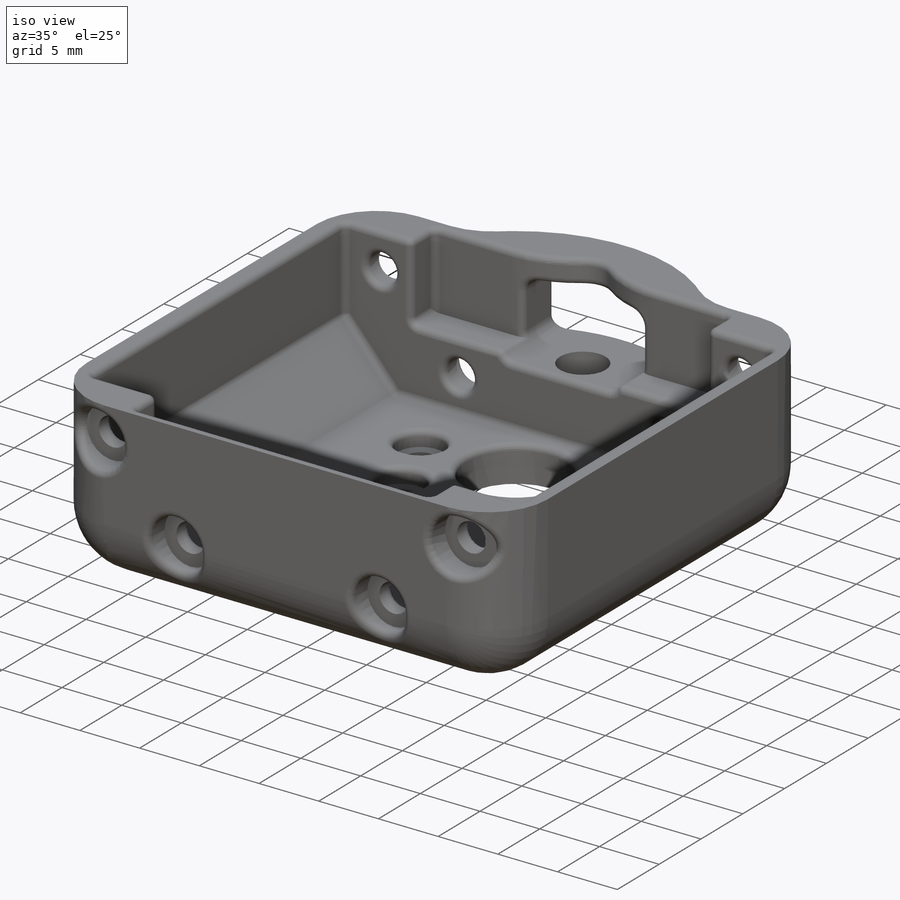
[diagram: iso view]
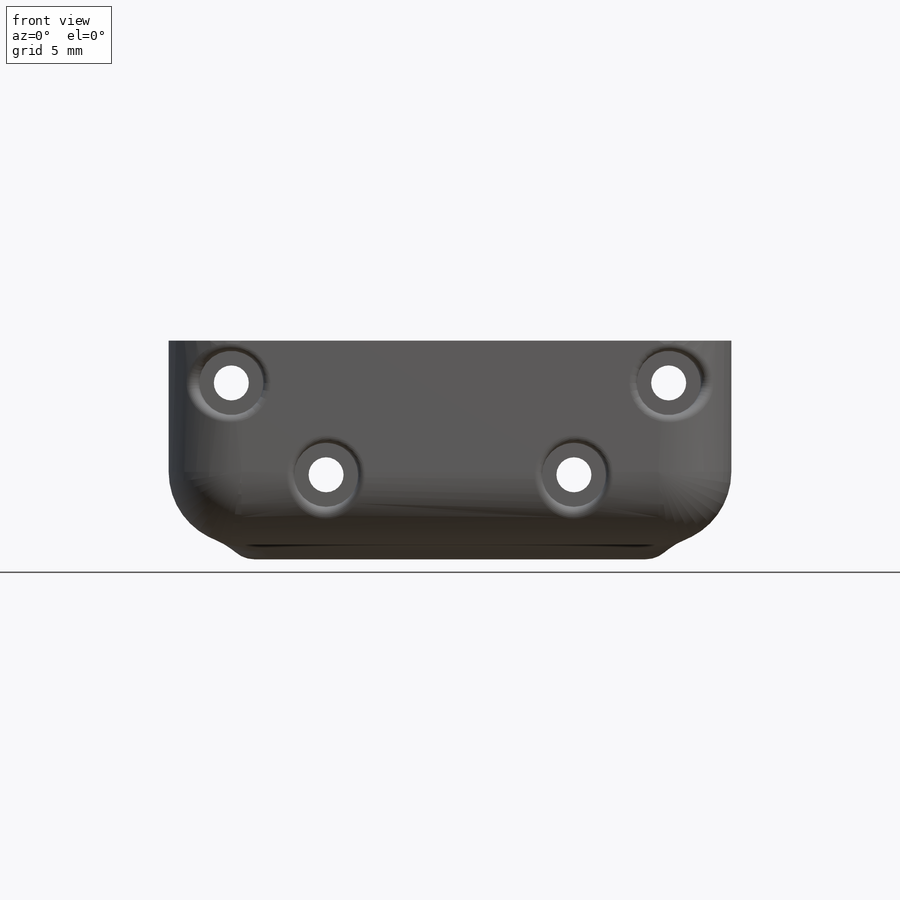
[diagram: front view]
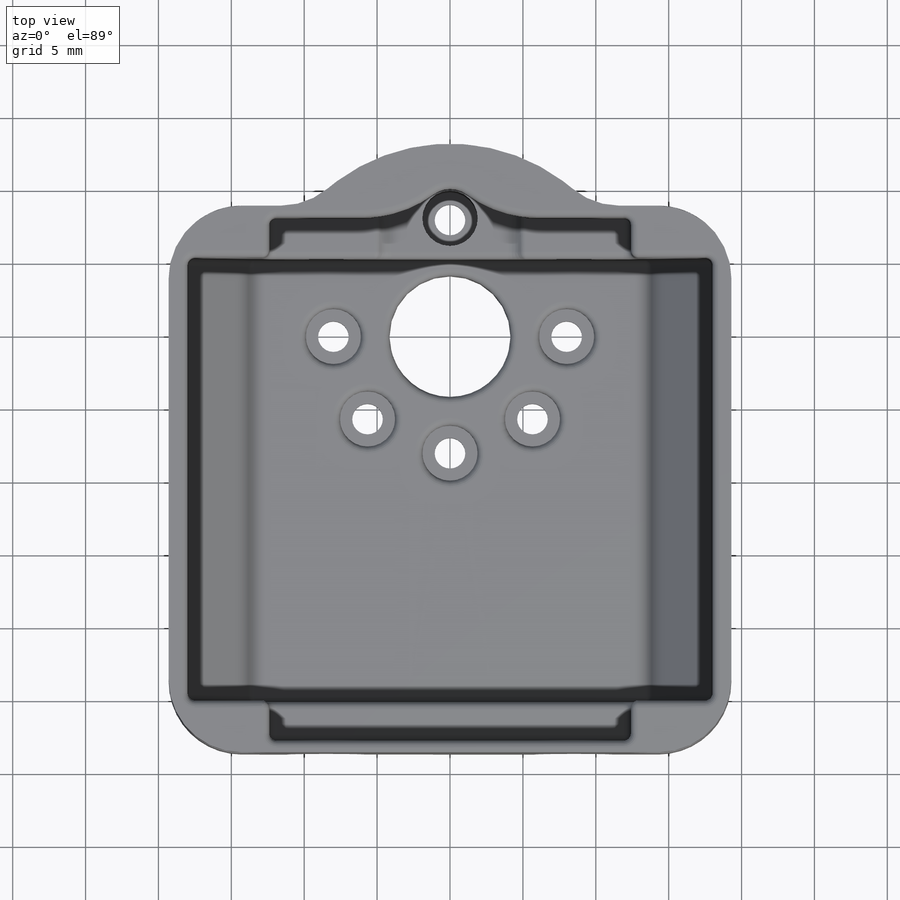
[diagram: top view]
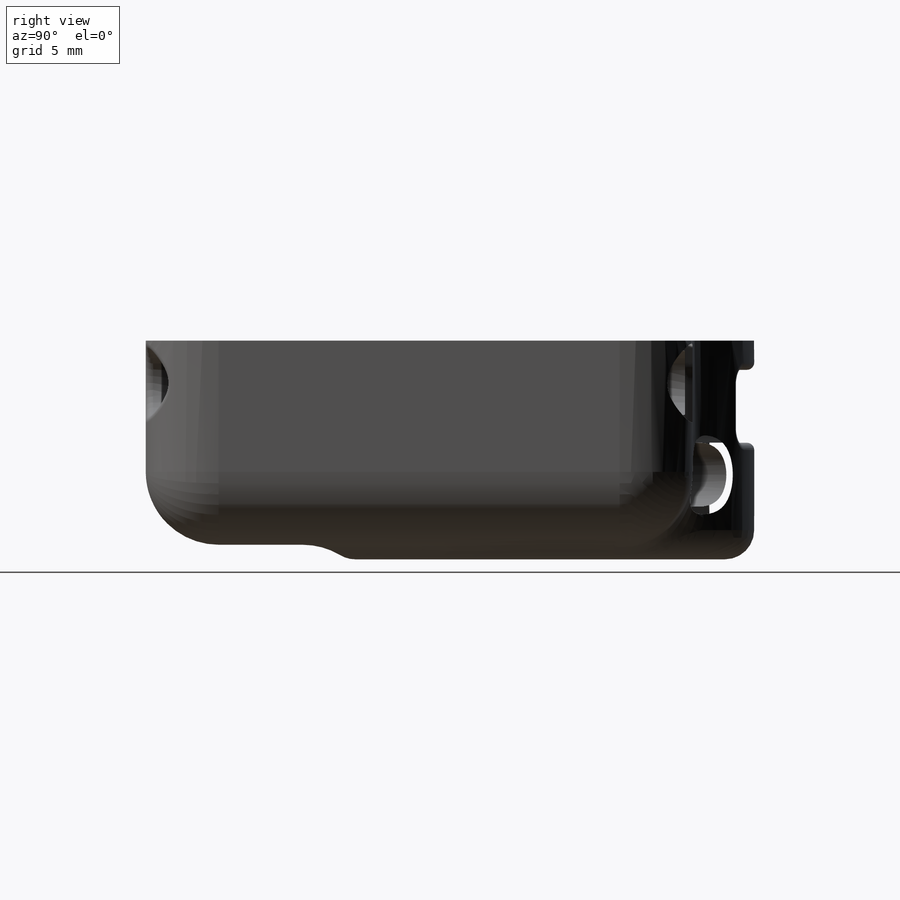
[diagram: right view]
SOLIDWORKS PART (.sldprt)
format: sldprt  version: not decoded by parser v0  size: 1,220,096 bytes
history: native  units: mm
features: sketch x16, fillet x8, plane x7, cut_extrude x7, hole x2, material x1, extrude x1, mirror x1, chamfer x1 (+11 scaffold rows collapsed; 2 parser-record rows omitted)
feature tree (57):
  scaffold x11  (default folders/planes/origin — collapsed)
  material  "Polyamide"
  plane  "Plan de face"
  plane  "Plan de dessus"
  plane  "Plan de droite"
  sketch  "MoteurSagittal"  dims[c1.D1=10.0mm c1.D2=30.0mm c1.D3=50.6mm c2.D2=15.0mm c2.D4=2.75mm c2.D5=5.6mm c2.D6=2.0mm c2.D7=3.0mm]
  plane  "Plan1"
  sketch  "MoteurFrontal"  dims[D9=2.7mm D1=17.8mm D2=12.2mm D3=2.8mm D4=2.8mm D5=6.3mm D6=17.0mm D7=17.0mm D8=8.5mm]
  sketch  "Rotation"  dims[D1=22.0mm D2=16.0mm D3=2.2mm D4=8.0mm D5=8.0]
  plane  "Plan2"
  sketch  "MoteurHorizontal"  dims[D1=15.0mm]
  plane  "middle_motor"
  parser-record x2  (decoder bookkeeping rows leaked as tree rows — omitted from the tree; the rows remain in map.json)
  sketch  "Esquisse5"  dims[D1=2.0mm D2=1.0mm D3=1.0mm D4=1.5mm]
  extrude  "Boss.-Extru.1"  Depth=15mm
  sketch  "Esquisse6"  dims[D1=26.0mm]
  cut_extrude  "Enlèv. mat.-Extru.2"  Depth=1mm
  sketch  "Esquisse8"  dims[D1=0.2mm]
  cut_extrude  "Enlèv. mat.-Extru.4"  [1 undecoded]
  sketch  "Esquisse9"
  cut_extrude  "Enlèv. mat.-Extru.5"  [1 undecoded]
  sketch  "Esquisse10"  dims[D1=8.3mm]
  cut_extrude  "Enlèv. mat.-Extru.6"  [1 undecoded]
  plane  "Plan4"
  hole  "Chambrage pour vis à tête ronde bombée M21"  Diameter=2.4mm Depth=10mm
  sketch  "Esquisse12"
  sketch  "Esquisse13"  dims[hole-wizard template sketch: 28 standard entries collapsed; hole parameters kept: c8.Diamètre du perçage=2.4mm c8.Profondeur du perçage=10.0mm c8.Diamètre du chambrage=4.4mm c8.Profondeur du chambrage=2.0mm c8.D5=~14.816244mm c8.Angle de pointe=118.0deg]
  mirror  "Symétrie1"
  hole  "Chambrage pour vis à tête ronde bombée M22"  Diameter=2.1mm Depth=3mm
  sketch  "Esquisse15"
  sketch  "Esquisse14"  dims[hole-wizard template sketch: 41 standard entries collapsed; hole parameters kept: c12.Diamètre du perçage jusqu'au prochain=2.1mm c12.Profondeur du perçage jusqu'au prochain=3.0mm c12.Diamètre du chambrage=3.8mm c12.Profondeur du chambrage=1.3mm]
  sketch  "Esquisse16"
  cut_extrude  "Enlèv. mat.-Extru.7"  [1 undecoded]
  sketch  "Esquisse17"
  cut_extrude  "Enlèv. mat.-Extru.8"  [1 undecoded]
  sketch  "Esquisse18"  dims[D1=10.0mm D2=5.0mm D3=8.0mm]
  cut_extrude  "Enlèv. mat.-Extru.9"  [1 undecoded]
  fillet  "Congé1"  Radius=5mm
  fillet  "Congé2"  Radius=5mm
  fillet  "Congé3"  Radius=5mm
  chamfer  "Chanfrein1"  Distance=5mm Angle=41deg
  fillet  "Congé8"  Radius=1mm
  fillet  "Congé9"  Radius=8mm
  fillet  "Congé4"  Radius=0.5mm
  fillet  "Congé6"  Radius=2mm
  fillet  "Congé7"  Radius=0.5mm
decode coverage: 24 of 36 modeling features carry decoded parameters
note: ~ marks probable driven/reference dimensions
note: 6 parameter values undecoded
summary: no parameter record found for 6 features
note: suppression state not decoded; provenance and decode notes live in map.json
